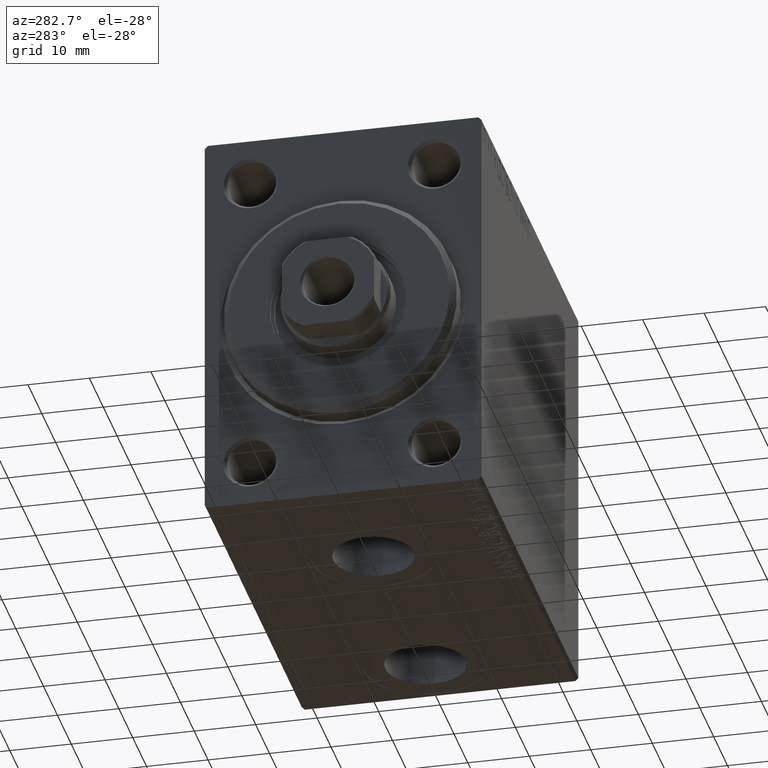
[diagram: clean part render]
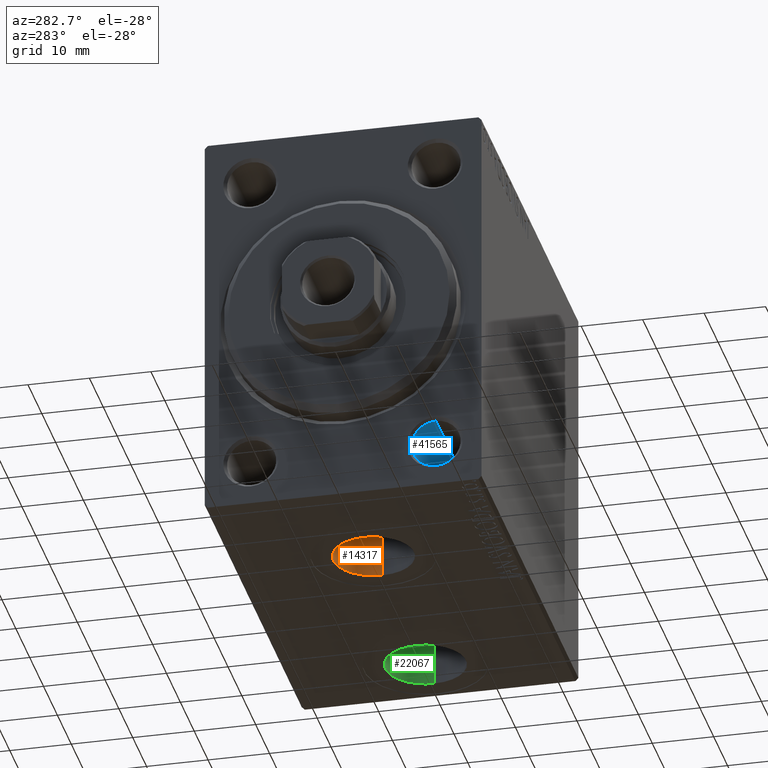
[diagram: same view with three faces highlighted in distinct colors, each labeled with its STEP entity id]
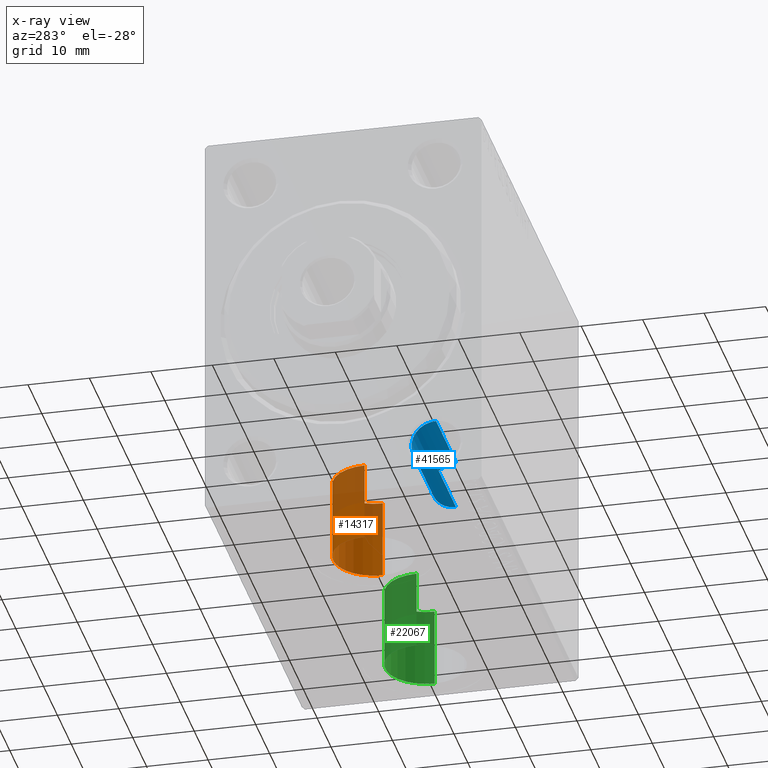
[diagram: x-ray of the same camera — body ghosted, the three highlighted faces saturated]
A machine part, auxiliary view with three faces highlighted in distinct colors.
The next image is the same camera in x-ray (body ghosted, the three faces saturated) — at least one of them is partly hidden behind the body in this view.
Their STEP definitions:

[orange] entity #14317 — the highlighted cylindrical surface (partial cylindrical patch) has radius 6.58 mm, axis along (-0, -0, -1).
#351 = VERTEX_POINT ( 'NONE', #28792 ) ;
#4421 = DIRECTION ( 'NONE',  ( -1.000000000000000000, 0.000000000000000000, 0.000000000000000000 ) ) ;
#5136 = DIRECTION ( 'NONE',  ( 0.000000000000000000, 0.000000000000000000, -1.000000000000000000 ) ) ;
#8903 = CARTESIAN_POINT ( 'NONE',  ( 28.58000000000000185, -2.104865637442060750E-15, -32.40000000000000568 ) ) ;
#9814 = EDGE_CURVE ( 'NONE', #29391, #17020, #44403, .T. ) ;
#10771 = DIRECTION ( 'NONE',  ( -0.000000000000000000, -0.000000000000000000, -1.000000000000000000 ) ) ;
#12656 = EDGE_CURVE ( 'NONE', #17020, #37824, #26343, .T. ) ;
#13613 = ORIENTED_EDGE ( 'NONE', *, *, #35338, .T. ) ;
#14317 = ADVANCED_FACE ( 'NONE', ( #21372 ), #31517, .F. ) ;
#15695 = AXIS2_PLACEMENT_3D ( 'NONE', #29593, #5136, #28917 ) ;
#17020 = VERTEX_POINT ( 'NONE', #37954 ) ;
#18087 = ORIENTED_EDGE ( 'NONE', *, *, #44129, .T. ) ;
#20908 = CARTESIAN_POINT ( 'NONE',  ( 22.00000000000000000, -2.910683231281019398E-15, -19.50000000000000355 ) ) ;
#21372 = FACE_OUTER_BOUND ( 'NONE', #29487, .T. ) ;
#21950 = DIRECTION ( 'NONE',  ( 0.000000000000000000, 0.000000000000000000, -1.000000000000000000 ) ) ;
#22509 = ORIENTED_EDGE ( 'NONE', *, *, #12656, .F. ) ;
#23788 = ORIENTED_EDGE ( 'NONE', *, *, #9814, .F. ) ;
#25421 = CARTESIAN_POINT ( 'NONE',  ( 22.00000000000000000, -2.910683231281019398E-15, -32.40000000000000568 ) ) ;
#25735 = VECTOR ( 'NONE', #26933, 1000.000000000000000 ) ;
#26343 = LINE ( 'NONE', #38524, #45131 ) ;
#26933 = DIRECTION ( 'NONE',  ( -0.000000000000000000, -0.000000000000000000, -1.000000000000000000 ) ) ;
#28792 = CARTESIAN_POINT ( 'NONE',  ( 15.41999999999999638, -2.910683231281019398E-15, -32.40000000000000568 ) ) ;
#28917 = DIRECTION ( 'NONE',  ( -1.000000000000000000, 0.000000000000000000, 0.000000000000000000 ) ) ;
#29391 = VERTEX_POINT ( 'NONE', #41808 ) ;
#29487 = EDGE_LOOP ( 'NONE', ( #22509, #23788, #18087, #13613 ) ) ;
#29593 = CARTESIAN_POINT ( 'NONE',  ( 22.00000000000000000, -2.910683231281019398E-15, -19.50000000000000355 ) ) ;
#31517 = CYLINDRICAL_SURFACE ( 'NONE', #42979, 6.580000000000002736 ) ;
#32227 = AXIS2_PLACEMENT_3D ( 'NONE', #25421, #21950, #4421 ) ;
#34295 = CARTESIAN_POINT ( 'NONE',  ( 15.41999999999999638, -2.910683231281019398E-15, -19.50000000000000355 ) ) ;
#35338 = EDGE_CURVE ( 'NONE', #351, #37824, #36618, .T. ) ;
#36618 = CIRCLE ( 'NONE', #32227, 6.580000000000002736 ) ;
#37824 = VERTEX_POINT ( 'NONE', #8903 ) ;
#37954 = CARTESIAN_POINT ( 'NONE',  ( 28.58000000000000185, -2.104865637442060750E-15, -19.50000000000000355 ) ) ;
#38211 = LINE ( 'NONE', #34295, #25735 ) ;
#38524 = CARTESIAN_POINT ( 'NONE',  ( 28.58000000000000185, -2.104865637442060750E-15, -19.50000000000000355 ) ) ;
#39355 = DIRECTION ( 'NONE',  ( -1.000000000000000000, 0.000000000000000000, 0.000000000000000000 ) ) ;
#41753 = DIRECTION ( 'NONE',  ( -0.000000000000000000, -0.000000000000000000, -1.000000000000000000 ) ) ;
#41808 = CARTESIAN_POINT ( 'NONE',  ( 15.41999999999999638, -2.910683231281019398E-15, -19.50000000000000355 ) ) ;
#42979 = AXIS2_PLACEMENT_3D ( 'NONE', #20908, #10771, #39355 ) ;
#44129 = EDGE_CURVE ( 'NONE', #29391, #351, #38211, .T. ) ;
#44403 = CIRCLE ( 'NONE', #15695, 6.580000000000002736 ) ;
#45131 = VECTOR ( 'NONE', #41753, 1000.000000000000000 ) ;

[blue] entity #41565 — the highlighted cylindrical surface (edge-blend (fillet) strip) has radius 4 mm, axis along (-1, -0, -0).
#391 = DIRECTION ( 'NONE',  ( 0.000000000000000000, 0.000000000000000000, 1.000000000000000000 ) ) ;
#2904 = DIRECTION ( 'NONE',  ( -1.000000000000000000, -0.000000000000000000, -0.000000000000000000 ) ) ;
#3975 = AXIS2_PLACEMENT_3D ( 'NONE', #17050, #21207, #20506 ) ;
#4067 = CYLINDRICAL_SURFACE ( 'NONE', #12495, 3.999999999999996447 ) ;
#5901 = VERTEX_POINT ( 'NONE', #31084 ) ;
#6073 = VECTOR ( 'NONE', #13797, 1000.000000000000000 ) ;
#6466 = CARTESIAN_POINT ( 'NONE',  ( 15.00000000000000000, -15.00000000000000000, -28.99999999999999645 ) ) ;
#10267 = DIRECTION ( 'NONE',  ( 0.000000000000000000, 0.000000000000000000, -1.000000000000000000 ) ) ;
#10451 = VERTEX_POINT ( 'NONE', #6466 ) ;
#11966 = EDGE_CURVE ( 'NONE', #10451, #5901, #24399, .T. ) ;
#12495 = AXIS2_PLACEMENT_3D ( 'NONE', #35214, #18137, #391 ) ;
#13797 = DIRECTION ( 'NONE',  ( -1.000000000000000000, -0.000000000000000000, -0.000000000000000000 ) ) ;
#14493 = CARTESIAN_POINT ( 'NONE',  ( 0.000000000000000000, -15.00000000000000000, -28.99999999999999645 ) ) ;
#15037 = CIRCLE ( 'NONE', #3975, 3.999999999999996447 ) ;
#15237 = EDGE_CURVE ( 'NONE', #32406, #10451, #15037, .T. ) ;
#16598 = EDGE_LOOP ( 'NONE', ( #40065, #33740, #44173, #23345 ) ) ;
#17050 = CARTESIAN_POINT ( 'NONE',  ( 15.00000000000000000, -15.00000000000000000, -25.00000000000000000 ) ) ;
#17410 = CARTESIAN_POINT ( 'NONE',  ( 0.4999999999999917843, -15.00000000000000000, -25.00000000000000000 ) ) ;
#17675 = LINE ( 'NONE', #38417, #41848 ) ;
#18137 = DIRECTION ( 'NONE',  ( -1.000000000000000000, -0.000000000000000000, -0.000000000000000000 ) ) ;
#20506 = DIRECTION ( 'NONE',  ( 0.000000000000000000, 0.000000000000000000, 1.000000000000000000 ) ) ;
#21029 = CARTESIAN_POINT ( 'NONE',  ( 15.00000000000000000, -15.00000000000000000, -21.00000000000000355 ) ) ;
#21207 = DIRECTION ( 'NONE',  ( -1.000000000000000000, -0.000000000000000000, -0.000000000000000000 ) ) ;
#23345 = ORIENTED_EDGE ( 'NONE', *, *, #35858, .T. ) ;
#24399 = LINE ( 'NONE', #14493, #6073 ) ;
#24500 = VERTEX_POINT ( 'NONE', #25369 ) ;
#24882 = AXIS2_PLACEMENT_3D ( 'NONE', #17410, #31251, #10267 ) ;
#25369 = CARTESIAN_POINT ( 'NONE',  ( 0.4999999999999917843, -15.00000000000000000, -21.00000000000000355 ) ) ;
#31029 = EDGE_CURVE ( 'NONE', #32406, #24500, #17675, .T. ) ;
#31084 = CARTESIAN_POINT ( 'NONE',  ( 0.4999999999999917843, -15.00000000000000000, -28.99999999999999645 ) ) ;
#31251 = DIRECTION ( 'NONE',  ( -1.000000000000000000, 0.000000000000000000, 0.000000000000000000 ) ) ;
#32257 = CIRCLE ( 'NONE', #24882, 3.999999999999996447 ) ;
#32406 = VERTEX_POINT ( 'NONE', #21029 ) ;
#32442 = FACE_OUTER_BOUND ( 'NONE', #16598, .T. ) ;
#33740 = ORIENTED_EDGE ( 'NONE', *, *, #15237, .F. ) ;
#35214 = CARTESIAN_POINT ( 'NONE',  ( 0.000000000000000000, -15.00000000000000000, -25.00000000000000000 ) ) ;
#35858 = EDGE_CURVE ( 'NONE', #24500, #5901, #32257, .T. ) ;
#38417 = CARTESIAN_POINT ( 'NONE',  ( 0.000000000000000000, -15.00000000000000000, -21.00000000000000355 ) ) ;
#40065 = ORIENTED_EDGE ( 'NONE', *, *, #11966, .F. ) ;
#41565 = ADVANCED_FACE ( 'NONE', ( #32442 ), #4067, .F. ) ;
#41848 = VECTOR ( 'NONE', #2904, 1000.000000000000000 ) ;
#44173 = ORIENTED_EDGE ( 'NONE', *, *, #31029, .T. ) ;

[green] entity #22067 — the highlighted cylindrical surface (partial cylindrical patch) has radius 6.58 mm, axis along (-0, -0, -1).
#1800 = EDGE_CURVE ( 'NONE', #45177, #33820, #11836, .T. ) ;
#3981 = DIRECTION ( 'NONE',  ( -0.000000000000000000, -0.000000000000000000, -1.000000000000000000 ) ) ;
#4116 = FACE_OUTER_BOUND ( 'NONE', #34523, .T. ) ;
#4358 = AXIS2_PLACEMENT_3D ( 'NONE', #45232, #10197, #45001 ) ;
#4887 = CARTESIAN_POINT ( 'NONE',  ( 59.50000000000000711, -6.655964947265702476E-15, -19.50000000000000355 ) ) ;
#4955 = ORIENTED_EDGE ( 'NONE', *, *, #38344, .F. ) ;
#5114 = DIRECTION ( 'NONE',  ( -1.000000000000000000, 0.000000000000000000, 0.000000000000000000 ) ) ;
#7122 = ORIENTED_EDGE ( 'NONE', *, *, #43911, .T. ) ;
#7207 = AXIS2_PLACEMENT_3D ( 'NONE', #4887, #21972, #5114 ) ;
#7699 = CARTESIAN_POINT ( 'NONE',  ( 52.92000000000000171, -6.655964947265702476E-15, -19.50000000000000355 ) ) ;
#10197 = DIRECTION ( 'NONE',  ( 0.000000000000000000, 0.000000000000000000, -1.000000000000000000 ) ) ;
#11605 = DIRECTION ( 'NONE',  ( -0.000000000000000000, -0.000000000000000000, -1.000000000000000000 ) ) ;
#11836 = LINE ( 'NONE', #7699, #12255 ) ;
#12255 = VECTOR ( 'NONE', #11605, 1000.000000000000000 ) ;
#14738 = CARTESIAN_POINT ( 'NONE',  ( 59.50000000000000711, -6.655964947265702476E-15, -19.50000000000000355 ) ) ;
#17601 = VECTOR ( 'NONE', #3981, 1000.000000000000000 ) ;
#18188 = CYLINDRICAL_SURFACE ( 'NONE', #40240, 6.580000000000002736 ) ;
#21972 = DIRECTION ( 'NONE',  ( 0.000000000000000000, 0.000000000000000000, -1.000000000000000000 ) ) ;
#22067 = ADVANCED_FACE ( 'NONE', ( #4116 ), #18188, .F. ) ;
#23982 = CARTESIAN_POINT ( 'NONE',  ( 52.92000000000000171, -6.655964947265702476E-15, -19.50000000000000355 ) ) ;
#25433 = LINE ( 'NONE', #32354, #17601 ) ;
#28807 = DIRECTION ( 'NONE',  ( -0.000000000000000000, -0.000000000000000000, -1.000000000000000000 ) ) ;
#29518 = EDGE_CURVE ( 'NONE', #45177, #29619, #44721, .T. ) ;
#29619 = VERTEX_POINT ( 'NONE', #38058 ) ;
#32350 = CIRCLE ( 'NONE', #4358, 6.580000000000002736 ) ;
#32354 = CARTESIAN_POINT ( 'NONE',  ( 66.07999999999999829, -5.850147353426744223E-15, -19.50000000000000355 ) ) ;
#33820 = VERTEX_POINT ( 'NONE', #35468 ) ;
#34523 = EDGE_LOOP ( 'NONE', ( #4955, #42594, #35009, #7122 ) ) ;
#35009 = ORIENTED_EDGE ( 'NONE', *, *, #1800, .T. ) ;
#35468 = CARTESIAN_POINT ( 'NONE',  ( 52.92000000000000171, -6.655964947265702476E-15, -32.40000000000000568 ) ) ;
#38058 = CARTESIAN_POINT ( 'NONE',  ( 66.07999999999999829, -5.850147353426743435E-15, -19.50000000000000355 ) ) ;
#38344 = EDGE_CURVE ( 'NONE', #29619, #39947, #25433, .T. ) ;
#39855 = DIRECTION ( 'NONE',  ( -1.000000000000000000, 0.000000000000000000, 0.000000000000000000 ) ) ;
#39947 = VERTEX_POINT ( 'NONE', #40620 ) ;
#40240 = AXIS2_PLACEMENT_3D ( 'NONE', #14738, #28807, #39855 ) ;
#40620 = CARTESIAN_POINT ( 'NONE',  ( 66.07999999999999829, -5.850147353426743435E-15, -32.40000000000000568 ) ) ;
#42594 = ORIENTED_EDGE ( 'NONE', *, *, #29518, .F. ) ;
#43911 = EDGE_CURVE ( 'NONE', #33820, #39947, #32350, .T. ) ;
#44721 = CIRCLE ( 'NONE', #7207, 6.580000000000002736 ) ;
#45001 = DIRECTION ( 'NONE',  ( -1.000000000000000000, 0.000000000000000000, 0.000000000000000000 ) ) ;
#45177 = VERTEX_POINT ( 'NONE', #23982 ) ;
#45232 = CARTESIAN_POINT ( 'NONE',  ( 59.50000000000000711, -6.655964947265702476E-15, -32.40000000000000568 ) ) ;